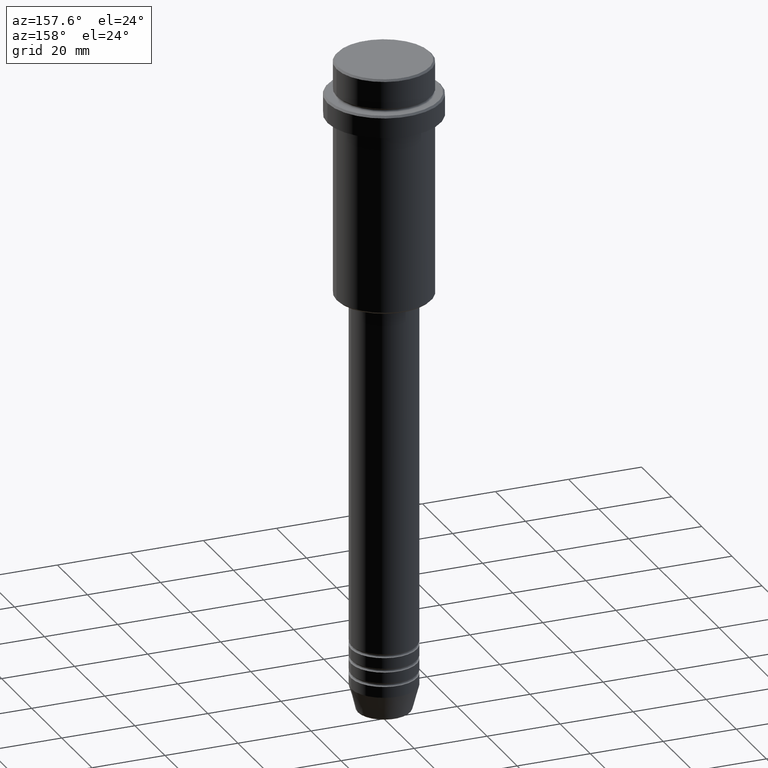
[diagram: clean part render]
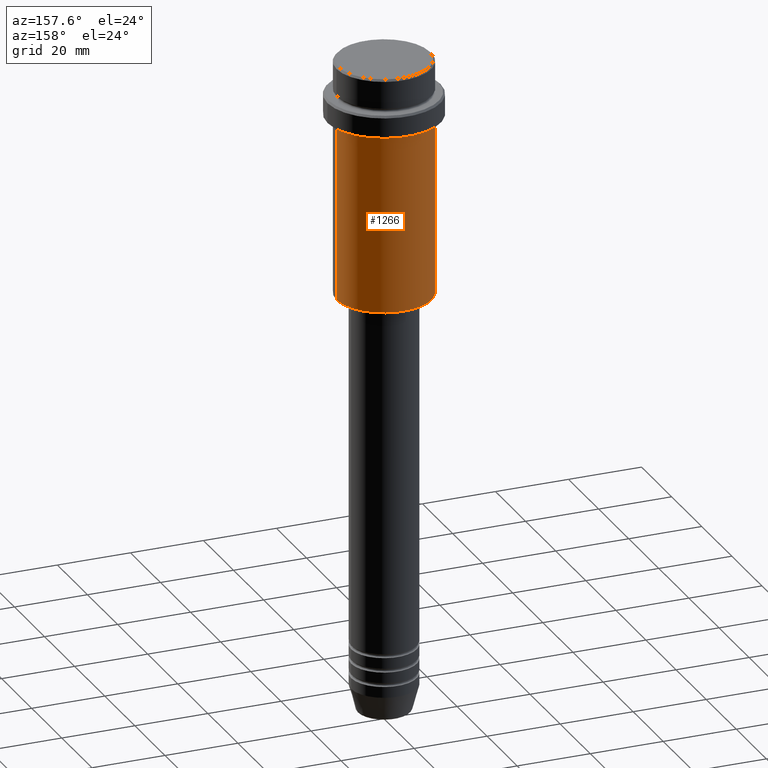
[diagram: same view with one face highlighted and labeled with its STEP entity id]
A machine part, auxiliary view. The second image highlights one B-rep face of the part: STEP entity #1266.
In plain terms, the highlighted cylindrical surface (partial cylindrical patch) has radius 13 mm, axis along (-0, -0, 1).
Its self-contained STEP definition (entity closure, byte-faithful):
#71 = CARTESIAN_POINT ( 'NONE',  ( 0.000000000000000000, 0.000000000000000000, 0.000000000000000000 ) ) ;
#223 = ORIENTED_EDGE ( 'NONE', *, *, #246, .T. ) ;
#231 = EDGE_CURVE ( 'NONE', #836, #1205, #1381, .T. ) ;
#246 = EDGE_CURVE ( 'NONE', #628, #630, #731, .T. ) ;
#303 = CARTESIAN_POINT ( 'NONE',  ( 13.00000000000000000, 0.000000000000000000, -64.50000000000001421 ) ) ;
#330 = VECTOR ( 'NONE', #1263, 1000.000000000000000 ) ;
#368 = DIRECTION ( 'NONE',  ( -0.000000000000000000, -0.000000000000000000, 1.000000000000000000 ) ) ;
#454 = CIRCLE ( 'NONE', #715, 13.00000000000000000 ) ;
#474 = DIRECTION ( 'NONE',  ( 1.000000000000000000, 0.000000000000000000, 0.000000000000000000 ) ) ;
#518 = DIRECTION ( 'NONE',  ( -0.000000000000000000, -0.000000000000000000, 1.000000000000000000 ) ) ;
#542 = CARTESIAN_POINT ( 'NONE',  ( 0.000000000000000000, 0.000000000000000000, -15.99999999999997335 ) ) ;
#605 = ORIENTED_EDGE ( 'NONE', *, *, #675, .T. ) ;
#628 = VERTEX_POINT ( 'NONE', #853 ) ;
#630 = VERTEX_POINT ( 'NONE', #767 ) ;
#675 = EDGE_CURVE ( 'NONE', #836, #628, #454, .T. ) ;
#715 = AXIS2_PLACEMENT_3D ( 'NONE', #880, #518, #1313 ) ;
#731 = LINE ( 'NONE', #1252, #330 ) ;
#767 = CARTESIAN_POINT ( 'NONE',  ( -13.00000000000000000, 1.592040838891559095E-15, -15.99999999999997335 ) ) ;
#769 = DIRECTION ( 'NONE',  ( -0.000000000000000000, -0.000000000000000000, 1.000000000000000000 ) ) ;
#836 = VERTEX_POINT ( 'NONE', #303 ) ;
#837 = DIRECTION ( 'NONE',  ( -0.000000000000000000, -0.000000000000000000, 1.000000000000000000 ) ) ;
#853 = CARTESIAN_POINT ( 'NONE',  ( -13.00000000000000000, 1.592040838891559095E-15, -64.50000000000001421 ) ) ;
#880 = CARTESIAN_POINT ( 'NONE',  ( 0.000000000000000000, 0.000000000000000000, -64.50000000000001421 ) ) ;
#963 = VECTOR ( 'NONE', #837, 1000.000000000000000 ) ;
#1010 = CIRCLE ( 'NONE', #1141, 13.00000000000000000 ) ;
#1020 = CYLINDRICAL_SURFACE ( 'NONE', #1343, 13.00000000000000000 ) ;
#1028 = ORIENTED_EDGE ( 'NONE', *, *, #1091, .F. ) ;
#1054 = DIRECTION ( 'NONE',  ( 1.000000000000000000, 0.000000000000000000, 0.000000000000000000 ) ) ;
#1091 = EDGE_CURVE ( 'NONE', #1205, #630, #1010, .T. ) ;
#1114 = EDGE_LOOP ( 'NONE', ( #605, #223, #1028, #1154 ) ) ;
#1141 = AXIS2_PLACEMENT_3D ( 'NONE', #542, #769, #474 ) ;
#1151 = CARTESIAN_POINT ( 'NONE',  ( 13.00000000000000000, 0.000000000000000000, -15.99999999999997335 ) ) ;
#1154 = ORIENTED_EDGE ( 'NONE', *, *, #231, .F. ) ;
#1205 = VERTEX_POINT ( 'NONE', #1151 ) ;
#1219 = FACE_OUTER_BOUND ( 'NONE', #1114, .T. ) ;
#1252 = CARTESIAN_POINT ( 'NONE',  ( -13.00000000000000000, 1.592040838891559095E-15, 0.000000000000000000 ) ) ;
#1263 = DIRECTION ( 'NONE',  ( -0.000000000000000000, -0.000000000000000000, 1.000000000000000000 ) ) ;
#1266 = ADVANCED_FACE ( 'NONE', ( #1219 ), #1020, .T. ) ;
#1273 = CARTESIAN_POINT ( 'NONE',  ( 13.00000000000000000, 0.000000000000000000, 0.000000000000000000 ) ) ;
#1313 = DIRECTION ( 'NONE',  ( -1.000000000000000000, 0.000000000000000000, 0.000000000000000000 ) ) ;
#1343 = AXIS2_PLACEMENT_3D ( 'NONE', #71, #368, #1054 ) ;
#1381 = LINE ( 'NONE', #1273, #963 ) ;